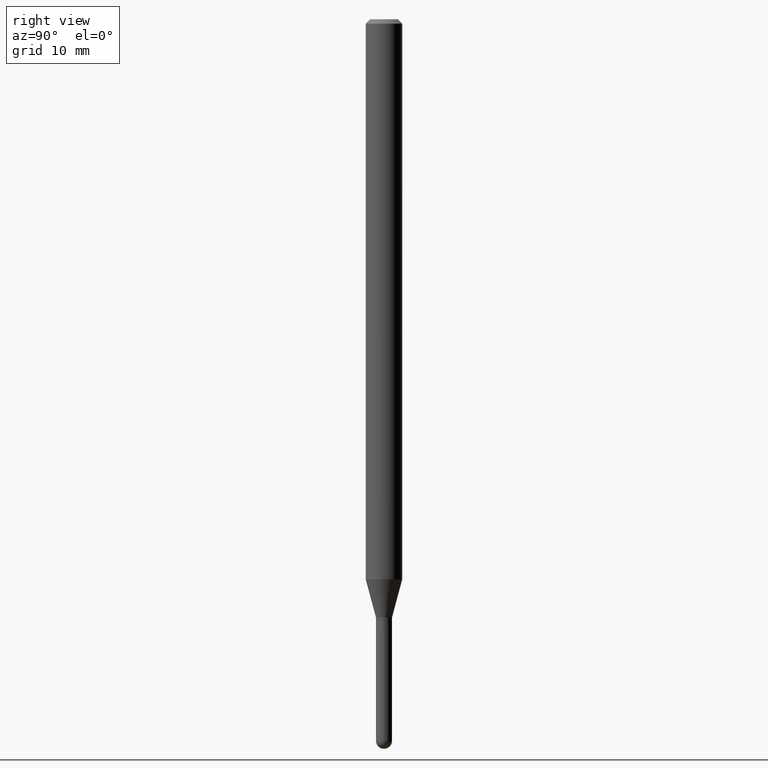
[diagram: clean part render]
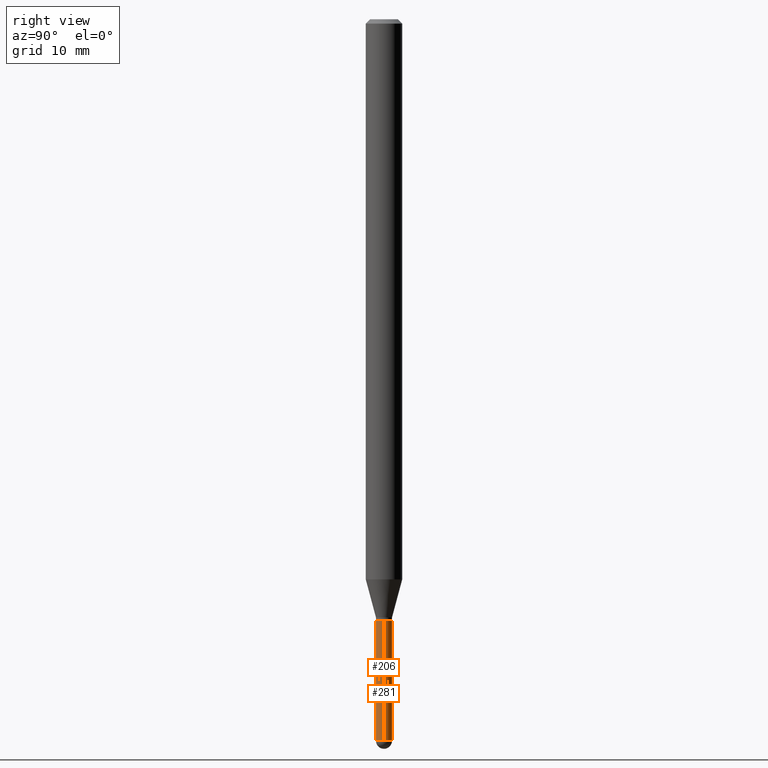
[diagram: same view with one multi-face feature highlighted, each face labeled with its STEP entity id]
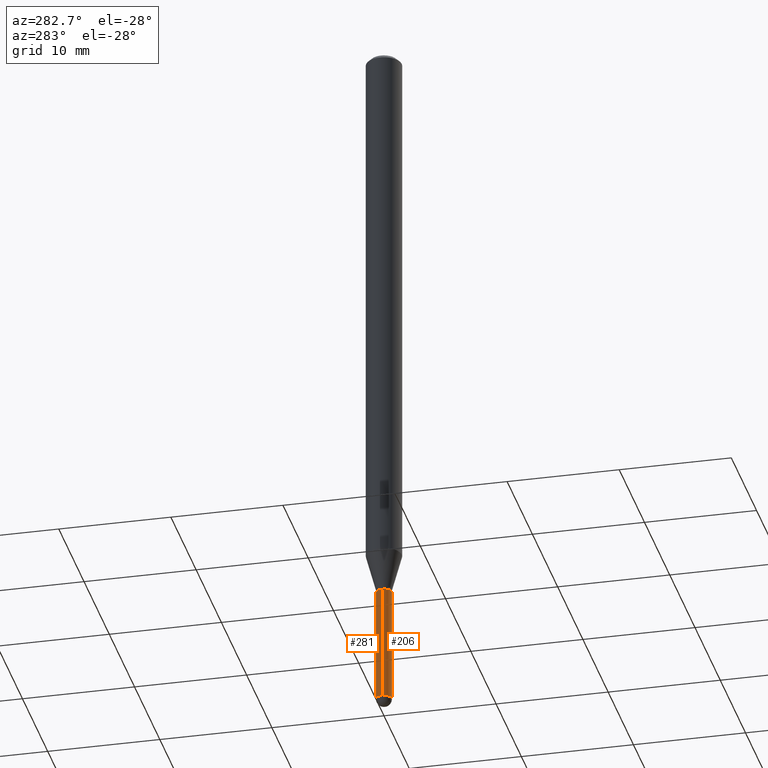
[diagram: same view with one multi-face feature highlighted, each face labeled with its STEP entity id]
A machine part, right view. The highlighted faces form ONE feature: a constant-radius fillet chain: 2 tangent blend faces with common blend radius 0.6985 mm. The faces share edges in the B-rep.
A second angle (auxiliary view) of the same feature is appended — it is thin or edge-on in the first view.
Their STEP definitions:
[1] entity #206 (Cylinder):
#4 = CYLINDRICAL_SURFACE ( 'NONE', #408, 0.02750000000000000014 ) ;
#12 = AXIS2_PLACEMENT_3D ( 'NONE', #191, #246, #56 ) ;
#26 = EDGE_CURVE ( 'NONE', #443, #442, #293, .T. ) ;
#31 = CIRCLE ( 'NONE', #12, 0.02750000000000000014 ) ;
#39 = LINE ( 'NONE', #343, #202 ) ;
#44 = DIRECTION ( 'NONE',  ( 1.000000000000000000, -6.982962677686266711E-15, 4.876176775795935793E-29 ) ) ;
#50 = EDGE_CURVE ( 'NONE', #443, #306, #31, .T. ) ;
#56 = DIRECTION ( 'NONE',  ( 1.000000000000000000, -6.982962677686279332E-15, 0.000000000000000000 ) ) ;
#68 = CARTESIAN_POINT ( 'NONE',  ( 6.046421623292748621E-29, -8.632687610289675147E-15, -2.472499999999999254 ) ) ;
#100 = CARTESIAN_POINT ( 'NONE',  ( -0.02750000000000000014, -7.717170331819249590E-15, -2.060000000000000053 ) ) ;
#128 = CARTESIAN_POINT ( 'NONE',  ( 0.02750000000000000014, -8.104601057789650990E-15, -2.472499999999999254 ) ) ;
#129 = VECTOR ( 'NONE', #448, 39.37007874015748143 ) ;
#135 = VERTEX_POINT ( 'NONE', #387 ) ;
#137 = ORIENTED_EDGE ( 'NONE', *, *, #364, .T. ) ;
#142 = CARTESIAN_POINT ( 'NONE',  ( -0.02750000000000000014, 1.953992523340275521E-16, -1.352707149820099181E-30 ) ) ;
#154 = DIRECTION ( 'NONE',  ( -2.445468806185136597E-29, 3.491481338843145583E-15, 1.000000000000000000 ) ) ;
#160 = EDGE_CURVE ( 'NONE', #442, #135, #339, .T. ) ;
#168 = DIRECTION ( 'NONE',  ( -2.445468806185136597E-29, 3.491481338843145583E-15, 1.000000000000000000 ) ) ;
#180 = VERTEX_POINT ( 'NONE', #128 ) ;
#191 = CARTESIAN_POINT ( 'NONE',  ( 6.046421623292748621E-29, -8.632687610289675147E-15, -2.472499999999999254 ) ) ;
#202 = VECTOR ( 'NONE', #340, 39.37007874015748143 ) ;
#206 = ADVANCED_FACE ( 'NONE', ( #229 ), #4, .T. ) ;
#209 = ORIENTED_EDGE ( 'NONE', *, *, #26, .F. ) ;
#229 = FACE_OUTER_BOUND ( 'NONE', #405, .T. ) ;
#235 = AXIS2_PLACEMENT_3D ( 'NONE', #431, #382, #465 ) ;
#240 = CARTESIAN_POINT ( 'NONE',  ( -1.953992523339664400E-16, -0.02750000000000854192, -2.472499999999999254 ) ) ;
#246 = DIRECTION ( 'NONE',  ( -2.445468806185136597E-29, 3.491481338843145583E-15, 1.000000000000000000 ) ) ;
#280 = CARTESIAN_POINT ( 'NONE',  ( -0.02750000000000000014, -7.717170331819249590E-15, -2.472499999999999254 ) ) ;
#287 = ORIENTED_EDGE ( 'NONE', *, *, #328, .T. ) ;
#293 = LINE ( 'NONE', #142, #129 ) ;
#306 = VERTEX_POINT ( 'NONE', #240 ) ;
#328 = EDGE_CURVE ( 'NONE', #306, #180, #452, .T. ) ;
#339 = CIRCLE ( 'NONE', #235, 0.02750000000000000014 ) ;
#340 = DIRECTION ( 'NONE',  ( -2.445468806185136877E-29, 3.491481338843145188E-15, 1.000000000000000000 ) ) ;
#343 = CARTESIAN_POINT ( 'NONE',  ( 0.02750000000000000014, -1.920314736363723444E-16, 1.340948613343882413E-30 ) ) ;
#353 = AXIS2_PLACEMENT_3D ( 'NONE', #68, #154, #508 ) ;
#364 = EDGE_CURVE ( 'NONE', #180, #135, #39, .T. ) ;
#369 = ORIENTED_EDGE ( 'NONE', *, *, #50, .T. ) ;
#382 = DIRECTION ( 'NONE',  ( -2.445468806185136597E-29, 3.491481338843145583E-15, 1.000000000000000000 ) ) ;
#387 = CARTESIAN_POINT ( 'NONE',  ( 0.02750000000000000014, -7.384483031653253552E-15, -2.060000000000000053 ) ) ;
#405 = EDGE_LOOP ( 'NONE', ( #209, #369, #287, #137, #415 ) ) ;
#408 = AXIS2_PLACEMENT_3D ( 'NONE', #467, #168, #44 ) ;
#415 = ORIENTED_EDGE ( 'NONE', *, *, #160, .F. ) ;
#431 = CARTESIAN_POINT ( 'NONE',  ( 5.037665740741381905E-29, -7.192451558016880271E-15, -2.060000000000000053 ) ) ;
#442 = VERTEX_POINT ( 'NONE', #100 ) ;
#443 = VERTEX_POINT ( 'NONE', #280 ) ;
#448 = DIRECTION ( 'NONE',  ( -2.445468806185136877E-29, 3.491481338843145188E-15, 1.000000000000000000 ) ) ;
#452 = CIRCLE ( 'NONE', #353, 0.02750000000000000014 ) ;
#465 = DIRECTION ( 'NONE',  ( 1.000000000000000000, -6.982962677686279332E-15, 0.000000000000000000 ) ) ;
#467 = CARTESIAN_POINT ( 'NONE',  ( 0.000000000000000000, 0.000000000000000000, 0.000000000000000000 ) ) ;
#508 = DIRECTION ( 'NONE',  ( 1.000000000000000000, -6.982962677686279332E-15, 0.000000000000000000 ) ) ;
[2] entity #281 (Cylinder):
#14 = ORIENTED_EDGE ( 'NONE', *, *, #364, .F. ) ;
#26 = EDGE_CURVE ( 'NONE', #443, #442, #293, .T. ) ;
#39 = LINE ( 'NONE', #343, #202 ) ;
#48 = CARTESIAN_POINT ( 'NONE',  ( 1.920314736364321499E-16, 0.02749999999999128142, -2.472499999999999254 ) ) ;
#64 = EDGE_CURVE ( 'NONE', #180, #284, #490, .T. ) ;
#95 = CIRCLE ( 'NONE', #308, 0.02750000000000000014 ) ;
#97 = EDGE_CURVE ( 'NONE', #284, #443, #330, .T. ) ;
#100 = CARTESIAN_POINT ( 'NONE',  ( -0.02750000000000000014, -7.717170331819249590E-15, -2.060000000000000053 ) ) ;
#113 = CARTESIAN_POINT ( 'NONE',  ( 6.046421623292748621E-29, -8.632687610289675147E-15, -2.472499999999999254 ) ) ;
#117 = DIRECTION ( 'NONE',  ( -2.445468806185136597E-29, 3.491481338843145583E-15, 1.000000000000000000 ) ) ;
#128 = CARTESIAN_POINT ( 'NONE',  ( 0.02750000000000000014, -8.104601057789650990E-15, -2.472499999999999254 ) ) ;
#129 = VECTOR ( 'NONE', #448, 39.37007874015748143 ) ;
#135 = VERTEX_POINT ( 'NONE', #387 ) ;
#142 = CARTESIAN_POINT ( 'NONE',  ( -0.02750000000000000014, 1.953992523340275521E-16, -1.352707149820099181E-30 ) ) ;
#144 = FACE_OUTER_BOUND ( 'NONE', #433, .T. ) ;
#149 = CYLINDRICAL_SURFACE ( 'NONE', #207, 0.02750000000000000014 ) ;
#161 = CARTESIAN_POINT ( 'NONE',  ( 5.037665740741381905E-29, -7.192451558016880271E-15, -2.060000000000000053 ) ) ;
#180 = VERTEX_POINT ( 'NONE', #128 ) ;
#182 = ORIENTED_EDGE ( 'NONE', *, *, #64, .T. ) ;
#202 = VECTOR ( 'NONE', #340, 39.37007874015748143 ) ;
#207 = AXIS2_PLACEMENT_3D ( 'NONE', #475, #402, #296 ) ;
#216 = DIRECTION ( 'NONE',  ( 1.000000000000000000, -6.982962677686279332E-15, 0.000000000000000000 ) ) ;
#241 = ORIENTED_EDGE ( 'NONE', *, *, #97, .T. ) ;
#255 = DIRECTION ( 'NONE',  ( -2.445468806185136597E-29, 3.491481338843145583E-15, 1.000000000000000000 ) ) ;
#256 = DIRECTION ( 'NONE',  ( 1.000000000000000000, -6.982962677686279332E-15, 0.000000000000000000 ) ) ;
#268 = AXIS2_PLACEMENT_3D ( 'NONE', #113, #255, #216 ) ;
#277 = ORIENTED_EDGE ( 'NONE', *, *, #388, .F. ) ;
#280 = CARTESIAN_POINT ( 'NONE',  ( -0.02750000000000000014, -7.717170331819249590E-15, -2.472499999999999254 ) ) ;
#281 = ADVANCED_FACE ( 'NONE', ( #144 ), #149, .T. ) ;
#284 = VERTEX_POINT ( 'NONE', #48 ) ;
#293 = LINE ( 'NONE', #142, #129 ) ;
#296 = DIRECTION ( 'NONE',  ( 1.000000000000000000, -6.982962677686266711E-15, 4.876176775795935793E-29 ) ) ;
#308 = AXIS2_PLACEMENT_3D ( 'NONE', #161, #117, #256 ) ;
#322 = AXIS2_PLACEMENT_3D ( 'NONE', #486, #332, #493 ) ;
#330 = CIRCLE ( 'NONE', #322, 0.02750000000000000014 ) ;
#332 = DIRECTION ( 'NONE',  ( -2.445468806185136597E-29, 3.491481338843145583E-15, 1.000000000000000000 ) ) ;
#340 = DIRECTION ( 'NONE',  ( -2.445468806185136877E-29, 3.491481338843145188E-15, 1.000000000000000000 ) ) ;
#343 = CARTESIAN_POINT ( 'NONE',  ( 0.02750000000000000014, -1.920314736363723444E-16, 1.340948613343882413E-30 ) ) ;
#364 = EDGE_CURVE ( 'NONE', #180, #135, #39, .T. ) ;
#374 = ORIENTED_EDGE ( 'NONE', *, *, #26, .T. ) ;
#387 = CARTESIAN_POINT ( 'NONE',  ( 0.02750000000000000014, -7.384483031653253552E-15, -2.060000000000000053 ) ) ;
#388 = EDGE_CURVE ( 'NONE', #135, #442, #95, .T. ) ;
#402 = DIRECTION ( 'NONE',  ( -2.445468806185136597E-29, 3.491481338843145583E-15, 1.000000000000000000 ) ) ;
#433 = EDGE_LOOP ( 'NONE', ( #241, #374, #277, #14, #182 ) ) ;
#442 = VERTEX_POINT ( 'NONE', #100 ) ;
#443 = VERTEX_POINT ( 'NONE', #280 ) ;
#448 = DIRECTION ( 'NONE',  ( -2.445468806185136877E-29, 3.491481338843145188E-15, 1.000000000000000000 ) ) ;
#475 = CARTESIAN_POINT ( 'NONE',  ( 0.000000000000000000, 0.000000000000000000, 0.000000000000000000 ) ) ;
#486 = CARTESIAN_POINT ( 'NONE',  ( 6.046421623292748621E-29, -8.632687610289675147E-15, -2.472499999999999254 ) ) ;
#490 = CIRCLE ( 'NONE', #268, 0.02750000000000000014 ) ;
#493 = DIRECTION ( 'NONE',  ( 1.000000000000000000, -6.982962677686279332E-15, 0.000000000000000000 ) ) ;